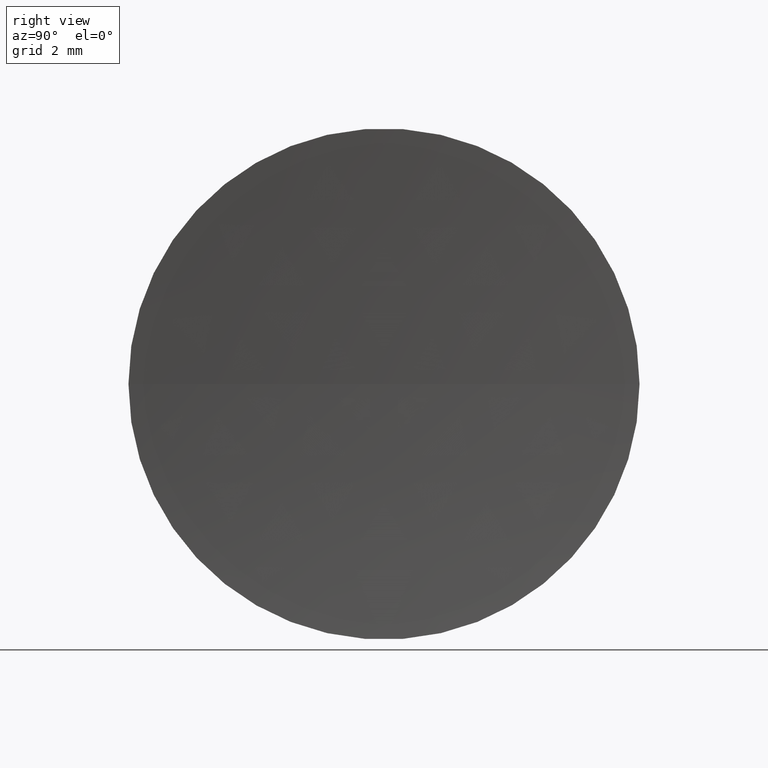
[diagram: clean part render]
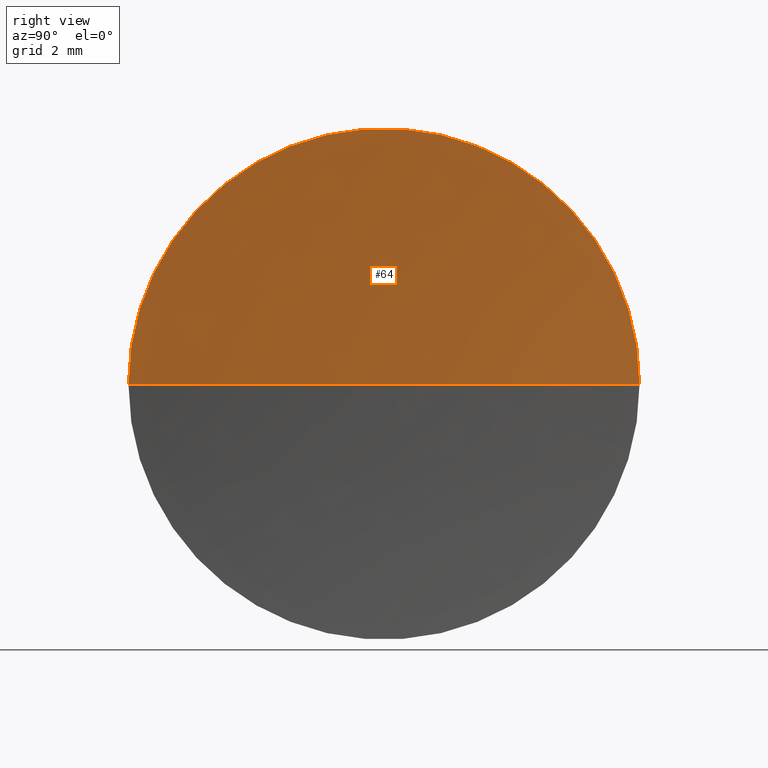
[diagram: same view with one face highlighted and labeled with its STEP entity id]
A machine part, right view. The second image highlights one B-rep face of the part: STEP entity #64.
In plain terms, the highlighted spherical surface has radius 67.7 mm.
Its self-contained STEP definition (entity closure, byte-faithful):
#2 = CIRCLE ( 'NONE', #39, 67.70000000000001700 ) ;
#6 = CARTESIAN_POINT ( 'NONE',  ( 64.19521112219439400, 26.35842023547015200, -7.654042494670929000E-016 ) ) ;
#15 = VERTEX_POINT ( 'NONE', #6 ) ;
#17 = EDGE_CURVE ( 'NONE', #15, #46, #35, .T. ) ;
#31 = DIRECTION ( 'NONE',  ( -8.199579206980475300E-016, 1.000000000000000000, 0.0000000000000000000 ) ) ;
#32 = CIRCLE ( 'NONE', #177, 67.70000000000001700 ) ;
#33 = CARTESIAN_POINT ( 'NONE',  ( 131.6060967416549900, 32.60842023547017700, 0.0000000000000000000 ) ) ;
#35 = CIRCLE ( 'NONE', #174, 6.249999999999995600 ) ;
#39 = AXIS2_PLACEMENT_3D ( 'NONE', #155, #159, #183 ) ;
#46 = VERTEX_POINT ( 'NONE', #186 ) ;
#56 = DIRECTION ( 'NONE',  ( 1.000000000000000000, 0.0000000000000000000, 0.0000000000000000000 ) ) ;
#61 = VERTEX_POINT ( 'NONE', #86 ) ;
#63 = AXIS2_PLACEMENT_3D ( 'NONE', #33, #99, #31 ) ;
#64 = ADVANCED_FACE ( 'NONE', ( #164 ), #78, .F. ) ;
#67 = CARTESIAN_POINT ( 'NONE',  ( 131.6060967416549900, 32.60842023547017700, 0.0000000000000000000 ) ) ;
#78 = SPHERICAL_SURFACE ( 'NONE', #63, 67.70000000000000300 ) ;
#80 = CARTESIAN_POINT ( 'NONE',  ( 64.19521112219439400, 32.60842023547017000, 0.0000000000000000000 ) ) ;
#86 = CARTESIAN_POINT ( 'NONE',  ( 63.90609674165499900, 32.60842023547013500, 0.0000000000000000000 ) ) ;
#88 = EDGE_CURVE ( 'NONE', #46, #61, #32, .T. ) ;
#96 = DIRECTION ( 'NONE',  ( 0.0000000000000000000, -1.000000000000000000, 0.0000000000000000000 ) ) ;
#99 = DIRECTION ( 'NONE',  ( 0.0000000000000000000, 0.0000000000000000000, -1.000000000000000000 ) ) ;
#109 = EDGE_CURVE ( 'NONE', #15, #61, #2, .T. ) ;
#123 = EDGE_LOOP ( 'NONE', ( #163, #168, #172 ) ) ;
#129 = DIRECTION ( 'NONE',  ( 0.0000000000000000000, -0.0000000000000000000, 1.000000000000000000 ) ) ;
#150 = DIRECTION ( 'NONE',  ( -1.000000000000000000, -6.937607244762875000E-016, -0.0000000000000000000 ) ) ;
#155 = CARTESIAN_POINT ( 'NONE',  ( 131.6060967416549900, 32.60842023547017700, 0.0000000000000000000 ) ) ;
#159 = DIRECTION ( 'NONE',  ( -8.496118506040342700E-032, 1.224646799147353200E-016, -1.000000000000000000 ) ) ;
#163 = ORIENTED_EDGE ( 'NONE', *, *, #17, .F. ) ;
#164 = FACE_OUTER_BOUND ( 'NONE', #123, .T. ) ;
#168 = ORIENTED_EDGE ( 'NONE', *, *, #109, .T. ) ;
#172 = ORIENTED_EDGE ( 'NONE', *, *, #88, .F. ) ;
#174 = AXIS2_PLACEMENT_3D ( 'NONE', #80, #150, #96 ) ;
#177 = AXIS2_PLACEMENT_3D ( 'NONE', #67, #129, #56 ) ;
#183 = DIRECTION ( 'NONE',  ( 0.0000000000000000000, 1.000000000000000000, 1.224646799147352700E-016 ) ) ;
#186 = CARTESIAN_POINT ( 'NONE',  ( 64.19521112219439400, 38.85842023547014900, 0.0000000000000000000 ) ) ;